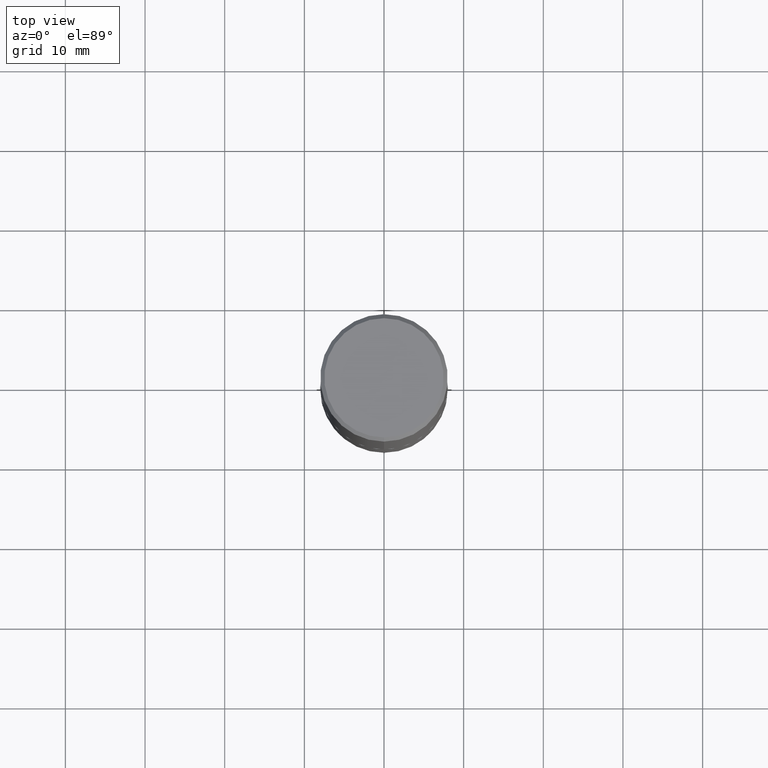
[diagram: clean part render]
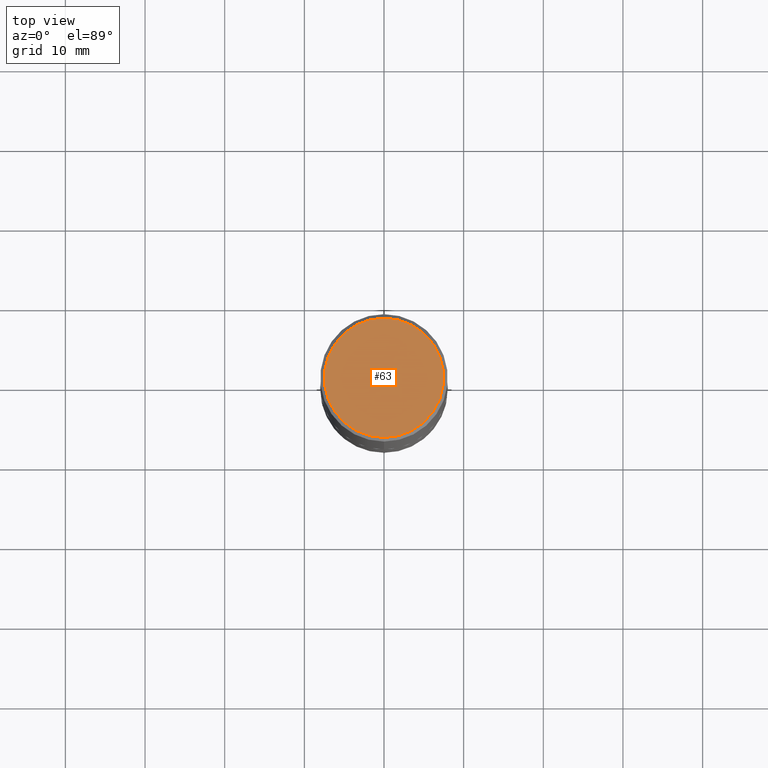
[diagram: same view with one face highlighted and labeled with its STEP entity id]
A machine part, top view. The second image highlights one B-rep face of the part: STEP entity #63.
In plain terms, the highlighted planar face has unit normal (0, -0, -1).
Its self-contained STEP definition (entity closure, byte-faithful):
#27 = CIRCLE ( 'NONE', #236, 0.2949499999999998234 ) ;
#46 = CARTESIAN_POINT ( 'NONE',  ( -2.092108864420427637E-15, -0.2949499999999998234, 1.119279898239787579E-15 ) ) ;
#63 = ADVANCED_FACE ( 'NONE', ( #140 ), #403, .F. ) ;
#76 = ORIENTED_EDGE ( 'NONE', *, *, #194, .T. ) ;
#98 = DIRECTION ( 'NONE',  ( -6.982962677686265922E-15, -1.000000000000000000, 3.491190976164545714E-15 ) ) ;
#100 = CIRCLE ( 'NONE', #408, 0.2949499999999998234 ) ;
#112 = DIRECTION ( 'NONE',  ( -6.982962677686265922E-15, -1.000000000000000000, 3.491190976164545714E-15 ) ) ;
#113 = DIRECTION ( 'NONE',  ( 2.445671565359901659E-29, -3.491190976164546108E-15, -1.000000000000000000 ) ) ;
#136 = DIRECTION ( 'NONE',  ( -2.445671565359902220E-29, 3.491190976164545714E-15, 1.000000000000000000 ) ) ;
#140 = FACE_OUTER_BOUND ( 'NONE', #262, .T. ) ;
#152 = ORIENTED_EDGE ( 'NONE', *, *, #375, .T. ) ;
#167 = AXIS2_PLACEMENT_3D ( 'NONE', #406, #113, #335 ) ;
#194 = EDGE_CURVE ( 'NONE', #229, #362, #100, .T. ) ;
#209 = CARTESIAN_POINT ( 'NONE',  ( 2.129454468560426573E-15, 0.2949499999999998234, -9.401736585996766211E-16 ) ) ;
#225 = CARTESIAN_POINT ( 'NONE',  ( -2.190175187331782360E-45, 3.126470438031604154E-31, 8.955311982005558999E-17 ) ) ;
#229 = VERTEX_POINT ( 'NONE', #209 ) ;
#236 = AXIS2_PLACEMENT_3D ( 'NONE', #274, #136, #112 ) ;
#262 = EDGE_LOOP ( 'NONE', ( #76, #152 ) ) ;
#274 = CARTESIAN_POINT ( 'NONE',  ( -2.190175187331782360E-45, 3.126470438031604154E-31, 8.955311982005558999E-17 ) ) ;
#335 = DIRECTION ( 'NONE',  ( 6.982962677686265922E-15, 1.000000000000000000, -3.491190976164546108E-15 ) ) ;
#362 = VERTEX_POINT ( 'NONE', #46 ) ;
#375 = EDGE_CURVE ( 'NONE', #362, #229, #27, .T. ) ;
#388 = DIRECTION ( 'NONE',  ( -2.445671565359902220E-29, 3.491190976164545714E-15, 1.000000000000000000 ) ) ;
#403 = PLANE ( 'NONE',  #167 ) ;
#406 = CARTESIAN_POINT ( 'NONE',  ( 2.059624841783562880E-15, 0.2949499999999998234, -9.849502185097042128E-16 ) ) ;
#408 = AXIS2_PLACEMENT_3D ( 'NONE', #225, #388, #98 ) ;